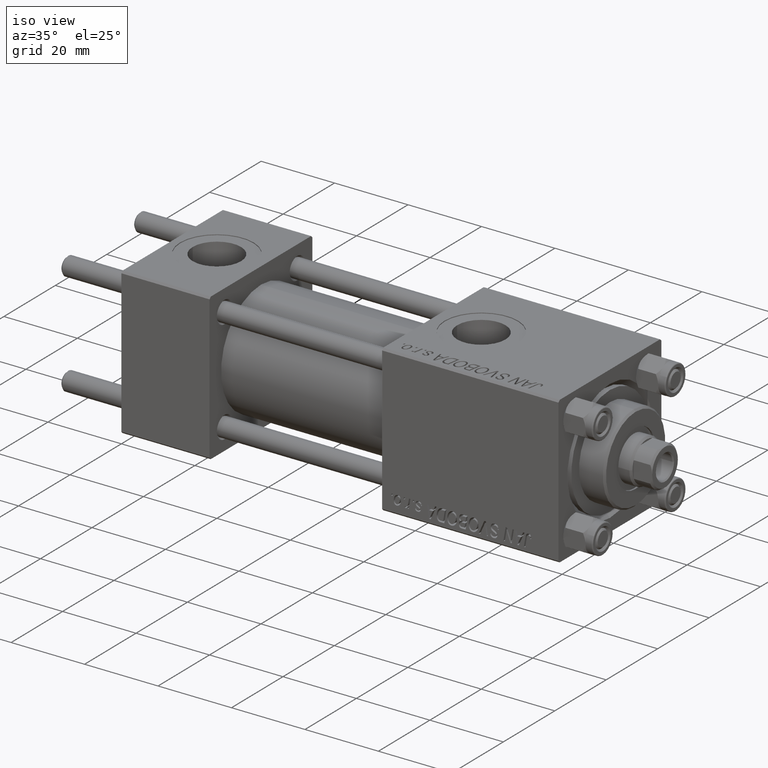
[diagram: clean part render]
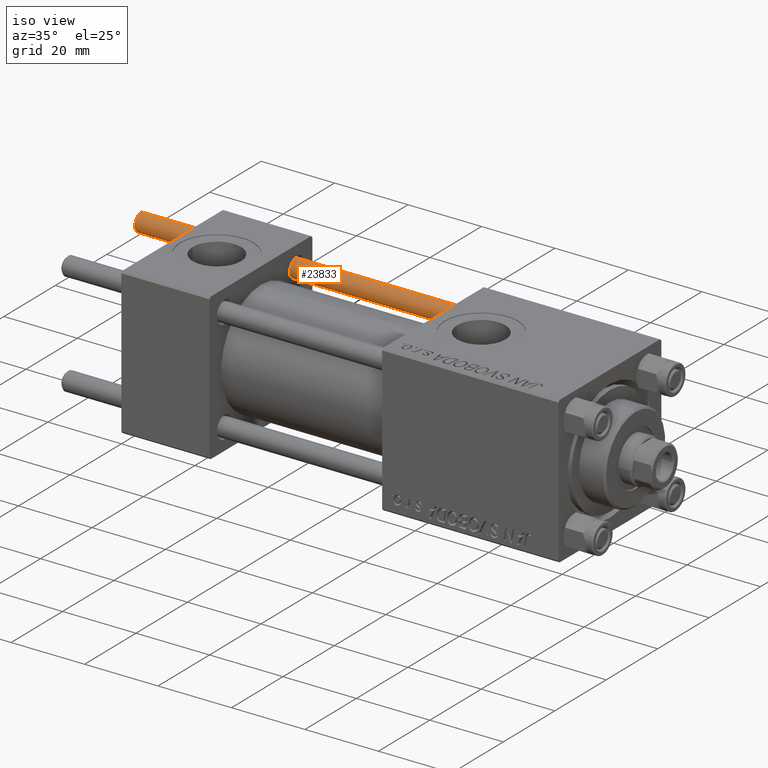
[diagram: same view with one face highlighted and labeled with its STEP entity id]
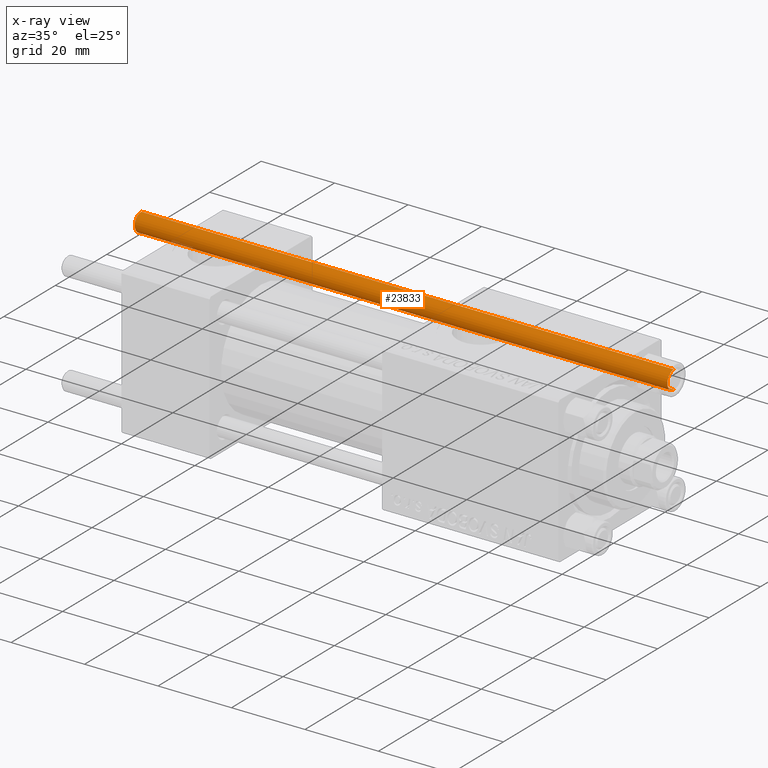
[diagram: x-ray of the same camera — body ghosted, the highlighted face saturated]
A machine part, iso view. The second image highlights one B-rep face of the part: STEP entity #23833.
The next image is the same camera in x-ray: the body ghosted, the highlighted face saturated — about 1% of this face is hidden behind the body in this view.
In plain terms, the highlighted cylindrical surface (edge-blend (fillet) strip) has radius 2.5 mm, axis along (-1, -0, -0).
Its self-contained STEP definition (entity closure, byte-faithful):
#1146 = EDGE_CURVE ( 'NONE', #47277, #2257, #8892, .T. ) ;
#1812 = DIRECTION ( 'NONE',  ( -0.000000000000000000, -0.000000000000000000, -1.000000000000000000 ) ) ;
#2257 = VERTEX_POINT ( 'NONE', #12178 ) ;
#2574 = LINE ( 'NONE', #41097, #38127 ) ;
#3508 = ORIENTED_EDGE ( 'NONE', *, *, #48768, .F. ) ;
#5207 = DIRECTION ( 'NONE',  ( 1.000000000000000000, 0.000000000000000000, 0.000000000000000000 ) ) ;
#8892 = CIRCLE ( 'NONE', #40275, 2.500000000000000000 ) ;
#10006 = VERTEX_POINT ( 'NONE', #30226 ) ;
#12178 = CARTESIAN_POINT ( 'NONE',  ( -2.500000000000000000, 0.000000000000000000, 145.5000000000000284 ) ) ;
#14204 = VERTEX_POINT ( 'NONE', #28086 ) ;
#14758 = CARTESIAN_POINT ( 'NONE',  ( -2.500000000000000000, 0.000000000000000000, 146.0000000000000000 ) ) ;
#14916 = ORIENTED_EDGE ( 'NONE', *, *, #42957, .T. ) ;
#16912 = CYLINDRICAL_SURFACE ( 'NONE', #44869, 2.500000000000000000 ) ;
#21226 = EDGE_LOOP ( 'NONE', ( #3508, #43673, #14916, #37499 ) ) ;
#21805 = DIRECTION ( 'NONE',  ( -0.000000000000000000, -0.000000000000000000, -1.000000000000000000 ) ) ;
#23833 = ADVANCED_FACE ( 'NONE', ( #40322 ), #16912, .T. ) ;
#28086 = CARTESIAN_POINT ( 'NONE',  ( 2.500000000000000000, 3.061616997868383141E-16, 0.5000000000000559552 ) ) ;
#28138 = CARTESIAN_POINT ( 'NONE',  ( 0.000000000000000000, 0.000000000000000000, 0.5000000000000559552 ) ) ;
#30226 = CARTESIAN_POINT ( 'NONE',  ( -2.500000000000000000, 0.000000000000000000, 0.5000000000000559552 ) ) ;
#30447 = CIRCLE ( 'NONE', #36860, 2.500000000000000000 ) ;
#30694 = EDGE_CURVE ( 'NONE', #10006, #14204, #30447, .T. ) ;
#32774 = CARTESIAN_POINT ( 'NONE',  ( 0.000000000000000000, 0.000000000000000000, 146.0000000000000000 ) ) ;
#36796 = DIRECTION ( 'NONE',  ( 1.000000000000000000, 0.000000000000000000, 0.000000000000000000 ) ) ;
#36860 = AXIS2_PLACEMENT_3D ( 'NONE', #28138, #44410, #5207 ) ;
#37282 = CARTESIAN_POINT ( 'NONE',  ( 2.500000000000000000, 3.061616997868383141E-16, 145.5000000000000284 ) ) ;
#37499 = ORIENTED_EDGE ( 'NONE', *, *, #30694, .T. ) ;
#38127 = VECTOR ( 'NONE', #48658, 1000.000000000000000 ) ;
#39492 = VECTOR ( 'NONE', #21805, 1000.000000000000000 ) ;
#40064 = CARTESIAN_POINT ( 'NONE',  ( 0.000000000000000000, 0.000000000000000000, 145.5000000000000284 ) ) ;
#40275 = AXIS2_PLACEMENT_3D ( 'NONE', #40064, #40579, #36796 ) ;
#40322 = FACE_OUTER_BOUND ( 'NONE', #21226, .T. ) ;
#40579 = DIRECTION ( 'NONE',  ( 0.000000000000000000, 0.000000000000000000, -1.000000000000000000 ) ) ;
#40584 = DIRECTION ( 'NONE',  ( -1.000000000000000000, 0.000000000000000000, 0.000000000000000000 ) ) ;
#41097 = CARTESIAN_POINT ( 'NONE',  ( 2.500000000000000000, 3.061616997868383141E-16, 146.0000000000000000 ) ) ;
#42957 = EDGE_CURVE ( 'NONE', #2257, #10006, #45478, .T. ) ;
#43673 = ORIENTED_EDGE ( 'NONE', *, *, #1146, .T. ) ;
#44410 = DIRECTION ( 'NONE',  ( -0.000000000000000000, -0.000000000000000000, 1.000000000000000000 ) ) ;
#44869 = AXIS2_PLACEMENT_3D ( 'NONE', #32774, #1812, #40584 ) ;
#45478 = LINE ( 'NONE', #14758, #39492 ) ;
#47277 = VERTEX_POINT ( 'NONE', #37282 ) ;
#48658 = DIRECTION ( 'NONE',  ( -0.000000000000000000, -0.000000000000000000, -1.000000000000000000 ) ) ;
#48768 = EDGE_CURVE ( 'NONE', #47277, #14204, #2574, .T. ) ;